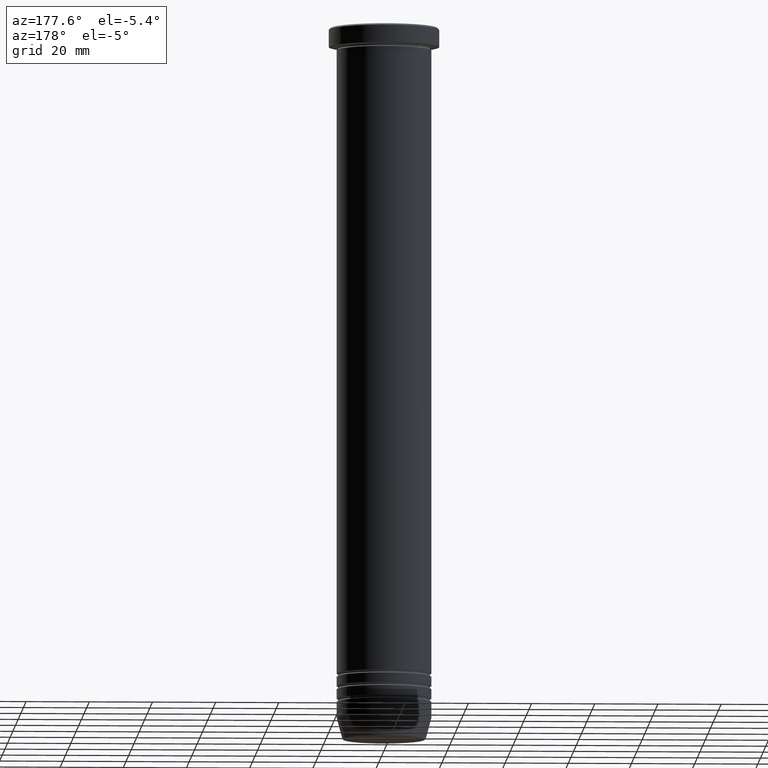
[diagram: clean part render]
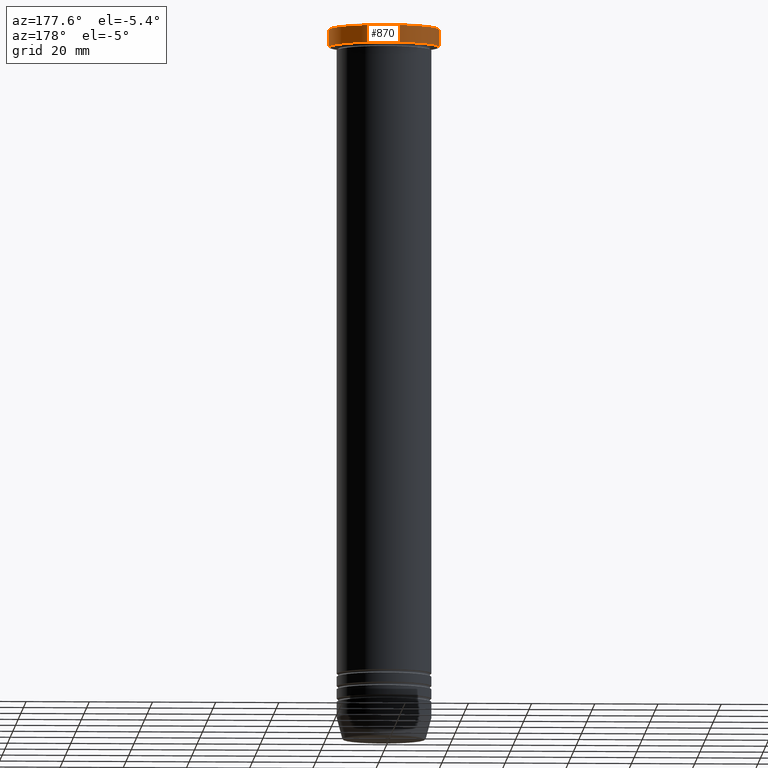
[diagram: same view with one face highlighted and labeled with its STEP entity id]
A machine part, auxiliary view. The second image highlights one B-rep face of the part: STEP entity #870.
In plain terms, the highlighted cylindrical surface (partial cylindrical patch) has radius 17.5 mm, axis along (-0, -0, 1).
Its self-contained STEP definition (entity closure, byte-faithful):
#19 = AXIS2_PLACEMENT_3D ( 'NONE', #615, #965, #746 ) ;
#34 = LINE ( 'NONE', #576, #581 ) ;
#56 = CARTESIAN_POINT ( 'NONE',  ( 17.50000000000000000, 0.000000000000000000, 0.000000000000000000 ) ) ;
#70 = CARTESIAN_POINT ( 'NONE',  ( 17.50000000000000000, 0.000000000000000000, -0.5000000000000073275 ) ) ;
#171 = AXIS2_PLACEMENT_3D ( 'NONE', #894, #367, #782 ) ;
#181 = EDGE_LOOP ( 'NONE', ( #932, #804, #924, #227 ) ) ;
#183 = FACE_OUTER_BOUND ( 'NONE', #181, .T. ) ;
#227 = ORIENTED_EDGE ( 'NONE', *, *, #642, .F. ) ;
#230 = CARTESIAN_POINT ( 'NONE',  ( -17.50000000000000000, 2.143131898507868248E-15, -5.999999999999999112 ) ) ;
#257 = CYLINDRICAL_SURFACE ( 'NONE', #171, 17.50000000000000000 ) ;
#261 = CIRCLE ( 'NONE', #19, 17.50000000000000000 ) ;
#367 = DIRECTION ( 'NONE',  ( -0.000000000000000000, -0.000000000000000000, 1.000000000000000000 ) ) ;
#407 = AXIS2_PLACEMENT_3D ( 'NONE', #670, #757, #1125 ) ;
#414 = DIRECTION ( 'NONE',  ( -0.000000000000000000, -0.000000000000000000, 1.000000000000000000 ) ) ;
#433 = VERTEX_POINT ( 'NONE', #70 ) ;
#463 = CARTESIAN_POINT ( 'NONE',  ( 17.50000000000000000, 0.000000000000000000, -5.999999999999999112 ) ) ;
#514 = LINE ( 'NONE', #56, #706 ) ;
#535 = CARTESIAN_POINT ( 'NONE',  ( -17.50000000000000000, 2.143131898507868248E-15, -0.5000000000000073275 ) ) ;
#576 = CARTESIAN_POINT ( 'NONE',  ( -17.50000000000000000, 2.143131898507868248E-15, 0.000000000000000000 ) ) ;
#581 = VECTOR ( 'NONE', #987, 1000.000000000000000 ) ;
#615 = CARTESIAN_POINT ( 'NONE',  ( 0.000000000000000000, 0.000000000000000000, -0.5000000000000073275 ) ) ;
#642 = EDGE_CURVE ( 'NONE', #778, #433, #514, .T. ) ;
#670 = CARTESIAN_POINT ( 'NONE',  ( 0.000000000000000000, 0.000000000000000000, -5.999999999999999112 ) ) ;
#706 = VECTOR ( 'NONE', #414, 1000.000000000000000 ) ;
#746 = DIRECTION ( 'NONE',  ( 1.000000000000000000, 0.000000000000000000, 0.000000000000000000 ) ) ;
#757 = DIRECTION ( 'NONE',  ( -0.000000000000000000, -0.000000000000000000, 1.000000000000000000 ) ) ;
#778 = VERTEX_POINT ( 'NONE', #463 ) ;
#782 = DIRECTION ( 'NONE',  ( 1.000000000000000000, 0.000000000000000000, 0.000000000000000000 ) ) ;
#790 = VERTEX_POINT ( 'NONE', #535 ) ;
#804 = ORIENTED_EDGE ( 'NONE', *, *, #990, .T. ) ;
#838 = EDGE_CURVE ( 'NONE', #790, #433, #261, .T. ) ;
#870 = ADVANCED_FACE ( 'NONE', ( #183 ), #257, .T. ) ;
#894 = CARTESIAN_POINT ( 'NONE',  ( 0.000000000000000000, 0.000000000000000000, 0.000000000000000000 ) ) ;
#924 = ORIENTED_EDGE ( 'NONE', *, *, #838, .T. ) ;
#932 = ORIENTED_EDGE ( 'NONE', *, *, #1040, .T. ) ;
#941 = CIRCLE ( 'NONE', #407, 17.50000000000000000 ) ;
#965 = DIRECTION ( 'NONE',  ( 0.000000000000000000, 0.000000000000000000, -1.000000000000000000 ) ) ;
#987 = DIRECTION ( 'NONE',  ( -0.000000000000000000, -0.000000000000000000, 1.000000000000000000 ) ) ;
#990 = EDGE_CURVE ( 'NONE', #1126, #790, #34, .T. ) ;
#1040 = EDGE_CURVE ( 'NONE', #778, #1126, #941, .T. ) ;
#1125 = DIRECTION ( 'NONE',  ( 1.000000000000000000, 0.000000000000000000, 0.000000000000000000 ) ) ;
#1126 = VERTEX_POINT ( 'NONE', #230 ) ;